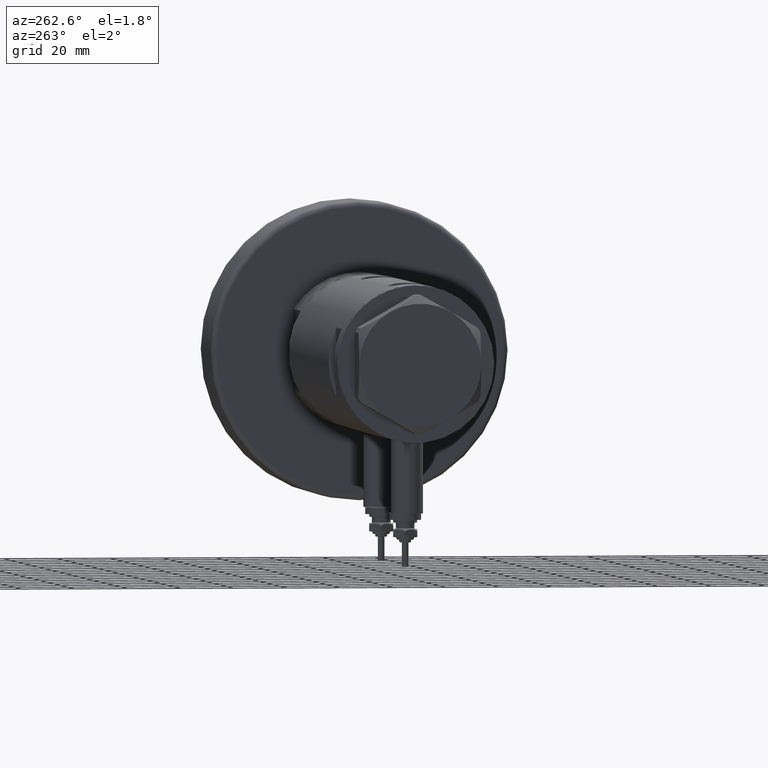
[diagram: clean part render]
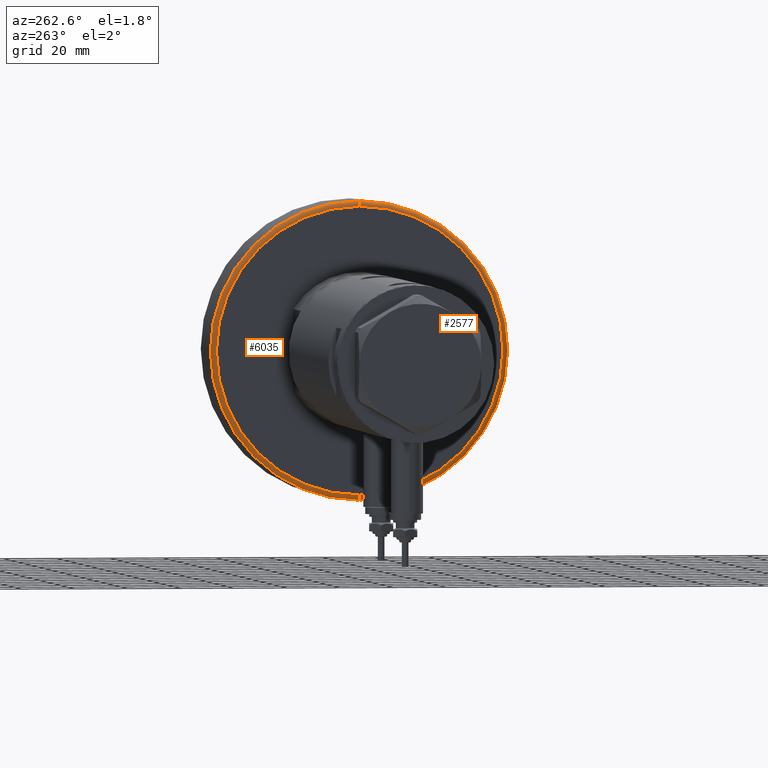
[diagram: same view with one multi-face feature highlighted, each face labeled with its STEP entity id]
A machine part, auxiliary view. The highlighted faces form ONE feature: a constant-radius fillet chain: 2 tangent blend faces with common blend radius 2 mm. The faces share edges in the B-rep.
Their STEP definitions:
[1] entity #6035 (Torus):
#3 = DIRECTION ( 'NONE',  ( 0.000000000000000000, -1.000000000000000000, 0.000000000000000000 ) ) ;
#63 = ORIENTED_EDGE ( 'NONE', *, *, #2646, .T. ) ;
#433 = ORIENTED_EDGE ( 'NONE', *, *, #4497, .F. ) ;
#457 = CARTESIAN_POINT ( 'NONE',  ( 0.000000000000000000, 0.000000000000000000, 2.000000000000001776 ) ) ;
#492 = CIRCLE ( 'NONE', #2414, 56.00000000000000000 ) ;
#917 = CARTESIAN_POINT ( 'NONE',  ( 54.00000000000000000, 0.000000000000000000, 0.000000000000000000 ) ) ;
#992 = CARTESIAN_POINT ( 'NONE',  ( 56.00000000000000000, 6.858022075225178552E-15, 2.000000000000001776 ) ) ;
#1208 = CARTESIAN_POINT ( 'NONE',  ( 0.000000000000000000, 0.000000000000000000, 2.000000000000001776 ) ) ;
#1633 = FACE_OUTER_BOUND ( 'NONE', #3410, .T. ) ;
#1827 = DIRECTION ( 'NONE',  ( 1.224646799147353207E-16, 1.000000000000000000, -0.000000000000000000 ) ) ;
#1891 = ORIENTED_EDGE ( 'NONE', *, *, #2217, .F. ) ;
#1896 = EDGE_CURVE ( 'NONE', #4210, #4514, #4848, .T. ) ;
#1925 = DIRECTION ( 'NONE',  ( 0.000000000000000000, 0.000000000000000000, -1.000000000000000000 ) ) ;
#2083 = AXIS2_PLACEMENT_3D ( 'NONE', #5463, #5433, #4428 ) ;
#2120 = DIRECTION ( 'NONE',  ( 1.000000000000000000, 0.000000000000000000, 0.000000000000000000 ) ) ;
#2217 = EDGE_CURVE ( 'NONE', #4514, #3719, #6286, .T. ) ;
#2231 = CARTESIAN_POINT ( 'NONE',  ( -54.00000000000000000, 6.735557395310443404E-15, 0.000000000000000000 ) ) ;
#2414 = AXIS2_PLACEMENT_3D ( 'NONE', #457, #3465, #4860 ) ;
#2646 = EDGE_CURVE ( 'NONE', #4210, #5098, #5164, .T. ) ;
#2654 = ORIENTED_EDGE ( 'NONE', *, *, #1896, .F. ) ;
#3410 = EDGE_LOOP ( 'NONE', ( #2654, #63, #433, #1891 ) ) ;
#3463 = AXIS2_PLACEMENT_3D ( 'NONE', #1208, #5627, #2120 ) ;
#3465 = DIRECTION ( 'NONE',  ( 0.000000000000000000, 0.000000000000000000, 1.000000000000000000 ) ) ;
#3537 = AXIS2_PLACEMENT_3D ( 'NONE', #6282, #3, #1925 ) ;
#3719 = VERTEX_POINT ( 'NONE', #992 ) ;
#4210 = VERTEX_POINT ( 'NONE', #2231 ) ;
#4424 = CARTESIAN_POINT ( 'NONE',  ( -56.00000000000000000, 0.000000000000000000, 2.000000000000001776 ) ) ;
#4428 = DIRECTION ( 'NONE',  ( 1.000000000000000000, 0.000000000000000000, 0.000000000000000000 ) ) ;
#4497 = EDGE_CURVE ( 'NONE', #3719, #5098, #492, .T. ) ;
#4514 = VERTEX_POINT ( 'NONE', #917 ) ;
#4671 = TOROIDAL_SURFACE ( 'NONE', #3463, 54.00000000000000000, 2.000000000000000000 ) ;
#4848 = CIRCLE ( 'NONE', #2083, 54.00000000000000000 ) ;
#4860 = DIRECTION ( 'NONE',  ( 1.000000000000000000, 0.000000000000000000, 0.000000000000000000 ) ) ;
#5098 = VERTEX_POINT ( 'NONE', #4424 ) ;
#5164 = CIRCLE ( 'NONE', #5281, 2.000000000000001776 ) ;
#5281 = AXIS2_PLACEMENT_3D ( 'NONE', #6215, #1827, #6273 ) ;
#5433 = DIRECTION ( 'NONE',  ( -0.000000000000000000, -0.000000000000000000, -1.000000000000000000 ) ) ;
#5463 = CARTESIAN_POINT ( 'NONE',  ( 0.000000000000000000, 0.000000000000000000, 0.000000000000000000 ) ) ;
#5627 = DIRECTION ( 'NONE',  ( 0.000000000000000000, 0.000000000000000000, 1.000000000000000000 ) ) ;
#6035 = ADVANCED_FACE ( 'NONE', ( #1633 ), #4671, .T. ) ;
#6215 = CARTESIAN_POINT ( 'NONE',  ( -54.00000000000000000, 6.613092715395707467E-15, 2.000000000000001776 ) ) ;
#6273 = DIRECTION ( 'NONE',  ( -1.000000000000000000, 1.224646799147353454E-16, 0.000000000000000000 ) ) ;
#6282 = CARTESIAN_POINT ( 'NONE',  ( 54.00000000000000000, 0.000000000000000000, 2.000000000000001776 ) ) ;
#6286 = CIRCLE ( 'NONE', #3537, 2.000000000000000000 ) ;
[2] entity #2577 (Torus):
#3 = DIRECTION ( 'NONE',  ( 0.000000000000000000, -1.000000000000000000, 0.000000000000000000 ) ) ;
#19 = EDGE_CURVE ( 'NONE', #4514, #4210, #1371, .T. ) ;
#917 = CARTESIAN_POINT ( 'NONE',  ( 54.00000000000000000, 0.000000000000000000, 0.000000000000000000 ) ) ;
#992 = CARTESIAN_POINT ( 'NONE',  ( 56.00000000000000000, 6.858022075225178552E-15, 2.000000000000001776 ) ) ;
#1251 = ORIENTED_EDGE ( 'NONE', *, *, #2217, .T. ) ;
#1371 = CIRCLE ( 'NONE', #6063, 54.00000000000000000 ) ;
#1409 = CIRCLE ( 'NONE', #2530, 56.00000000000000000 ) ;
#1496 = AXIS2_PLACEMENT_3D ( 'NONE', #6149, #1764, #4703 ) ;
#1764 = DIRECTION ( 'NONE',  ( 0.000000000000000000, 0.000000000000000000, 1.000000000000000000 ) ) ;
#1827 = DIRECTION ( 'NONE',  ( 1.224646799147353207E-16, 1.000000000000000000, -0.000000000000000000 ) ) ;
#1925 = DIRECTION ( 'NONE',  ( 0.000000000000000000, 0.000000000000000000, -1.000000000000000000 ) ) ;
#2217 = EDGE_CURVE ( 'NONE', #4514, #3719, #6286, .T. ) ;
#2231 = CARTESIAN_POINT ( 'NONE',  ( -54.00000000000000000, 6.735557395310443404E-15, 0.000000000000000000 ) ) ;
#2259 = DIRECTION ( 'NONE',  ( 1.000000000000000000, 0.000000000000000000, 0.000000000000000000 ) ) ;
#2312 = EDGE_LOOP ( 'NONE', ( #3688, #4685, #1251, #5809 ) ) ;
#2530 = AXIS2_PLACEMENT_3D ( 'NONE', #2767, #6261, #2259 ) ;
#2577 = ADVANCED_FACE ( 'NONE', ( #4192 ), #2713, .T. ) ;
#2646 = EDGE_CURVE ( 'NONE', #4210, #5098, #5164, .T. ) ;
#2713 = TOROIDAL_SURFACE ( 'NONE', #1496, 54.00000000000000000, 2.000000000000000000 ) ;
#2767 = CARTESIAN_POINT ( 'NONE',  ( 0.000000000000000000, 0.000000000000000000, 2.000000000000001776 ) ) ;
#3537 = AXIS2_PLACEMENT_3D ( 'NONE', #6282, #3, #1925 ) ;
#3538 = DIRECTION ( 'NONE',  ( -0.000000000000000000, -0.000000000000000000, -1.000000000000000000 ) ) ;
#3688 = ORIENTED_EDGE ( 'NONE', *, *, #2646, .F. ) ;
#3719 = VERTEX_POINT ( 'NONE', #992 ) ;
#4192 = FACE_OUTER_BOUND ( 'NONE', #2312, .T. ) ;
#4210 = VERTEX_POINT ( 'NONE', #2231 ) ;
#4424 = CARTESIAN_POINT ( 'NONE',  ( -56.00000000000000000, 0.000000000000000000, 2.000000000000001776 ) ) ;
#4496 = CARTESIAN_POINT ( 'NONE',  ( 0.000000000000000000, 0.000000000000000000, 0.000000000000000000 ) ) ;
#4514 = VERTEX_POINT ( 'NONE', #917 ) ;
#4685 = ORIENTED_EDGE ( 'NONE', *, *, #19, .F. ) ;
#4703 = DIRECTION ( 'NONE',  ( 1.000000000000000000, 0.000000000000000000, 0.000000000000000000 ) ) ;
#5098 = VERTEX_POINT ( 'NONE', #4424 ) ;
#5164 = CIRCLE ( 'NONE', #5281, 2.000000000000001776 ) ;
#5281 = AXIS2_PLACEMENT_3D ( 'NONE', #6215, #1827, #6273 ) ;
#5494 = DIRECTION ( 'NONE',  ( 1.000000000000000000, 0.000000000000000000, 0.000000000000000000 ) ) ;
#5658 = EDGE_CURVE ( 'NONE', #5098, #3719, #1409, .T. ) ;
#5809 = ORIENTED_EDGE ( 'NONE', *, *, #5658, .F. ) ;
#6063 = AXIS2_PLACEMENT_3D ( 'NONE', #4496, #3538, #5494 ) ;
#6149 = CARTESIAN_POINT ( 'NONE',  ( 0.000000000000000000, 0.000000000000000000, 2.000000000000001776 ) ) ;
#6215 = CARTESIAN_POINT ( 'NONE',  ( -54.00000000000000000, 6.613092715395707467E-15, 2.000000000000001776 ) ) ;
#6261 = DIRECTION ( 'NONE',  ( 0.000000000000000000, 0.000000000000000000, 1.000000000000000000 ) ) ;
#6273 = DIRECTION ( 'NONE',  ( -1.000000000000000000, 1.224646799147353454E-16, 0.000000000000000000 ) ) ;
#6282 = CARTESIAN_POINT ( 'NONE',  ( 54.00000000000000000, 0.000000000000000000, 2.000000000000001776 ) ) ;
#6286 = CIRCLE ( 'NONE', #3537, 2.000000000000000000 ) ;